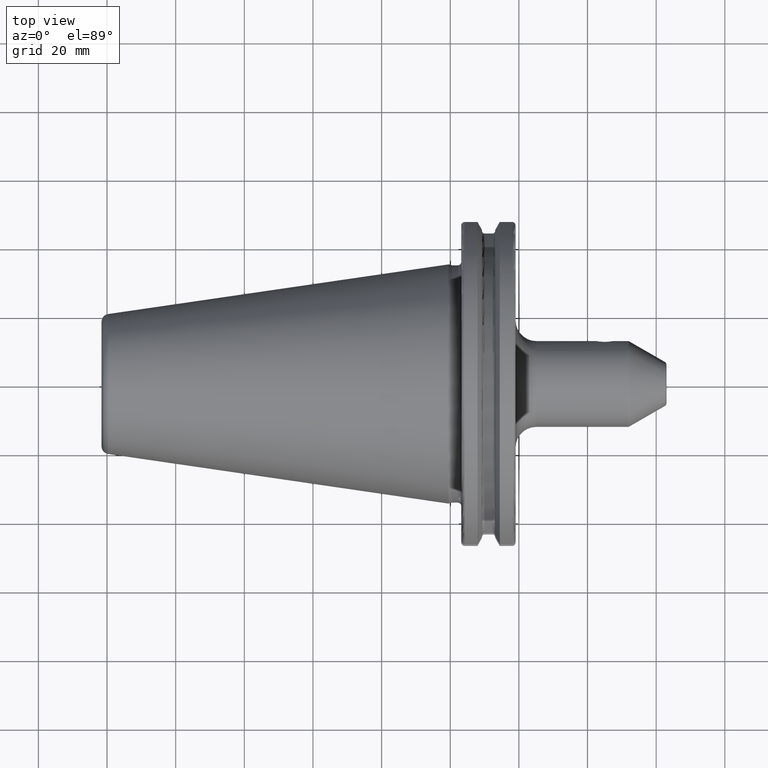
[diagram: clean part render]
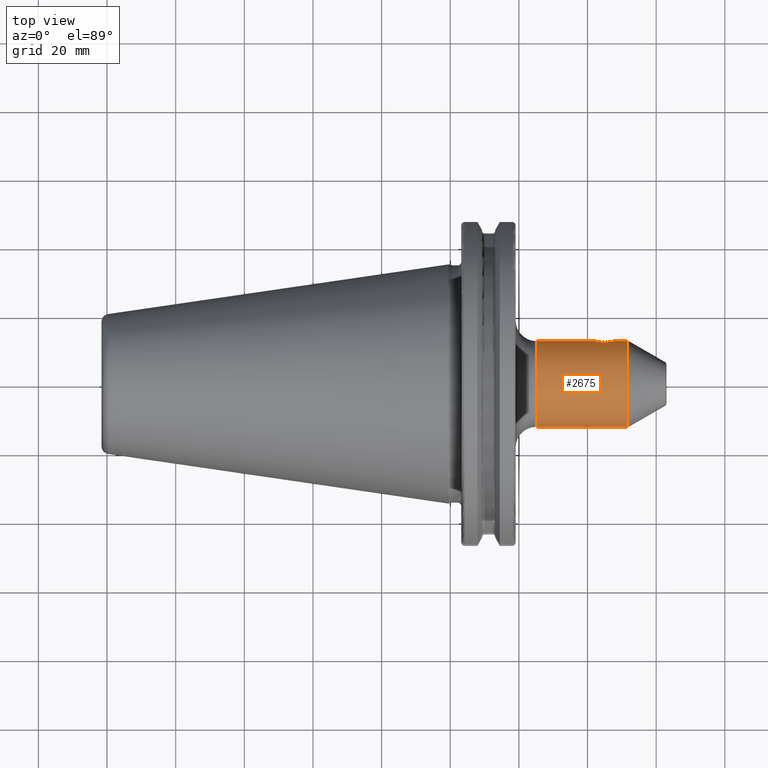
[diagram: same view with one face highlighted and labeled with its STEP entity id]
A machine part, top view. The second image highlights one B-rep face of the part: STEP entity #2675.
In plain terms, the highlighted cylindrical surface (partial cylindrical patch) has radius 12.5 mm, axis along (1, 0, 0).
Its self-contained STEP definition (entity closure, byte-faithful):
#962=CARTESIAN_POINT('',(4.75E1,1.25E1,0.E0));
#963=CARTESIAN_POINT('',(4.75E1,1.25E1,1.636152789298E-1));
#964=CARTESIAN_POINT('',(4.746859392631E1,1.249366097127E1,4.843569650245E-1));
#965=CARTESIAN_POINT('',(4.732787380435E1,1.246628661622E1,9.544741323415E-1));
#966=CARTESIAN_POINT('',(4.709969225365E1,1.242520376702E1,1.385599207801E0));
#967=CARTESIAN_POINT('',(4.679378691470E1,1.237658457224E1,1.763809352546E0));
#968=CARTESIAN_POINT('',(4.642032809810E1,1.232737403344E1,2.076453015106E0));
#969=CARTESIAN_POINT('',(4.599124481157E1,1.228471746962E1,2.312665018228E0));
#970=CARTESIAN_POINT('',(4.551696339140E1,1.225510170684E1,2.462854285463E0));
#971=CARTESIAN_POINT('',(4.502037170213E1,1.224406425036E1,2.516410475751E0));
#972=CARTESIAN_POINT('',(4.452433083425E1,1.225343614877E1,2.471001297037E0));
#973=CARTESIAN_POINT('',(4.404852229059E1,1.228150257519E1,2.329474891621E0));
#974=CARTESIAN_POINT('',(4.361024903247E1,1.232376918576E1,2.097639563023E0));
#975=CARTESIAN_POINT('',(4.322658072603E1,1.237355937909E1,1.785045290640E0));
#976=CARTESIAN_POINT('',(4.291161752976E1,1.242324313891E1,1.403458428770E0));
#977=CARTESIAN_POINT('',(4.267727245802E1,1.246530320876E1,9.680529374891E-1));
#978=CARTESIAN_POINT('',(4.253240123928E1,1.249345788711E1,4.917901451870E-1));
#979=CARTESIAN_POINT('',(4.25E1,1.25E1,1.662377153320E-1));
#980=CARTESIAN_POINT('',(4.25E1,1.25E1,0.E0));
#982=CARTESIAN_POINT('',(5.173205080757E1,0.E0,0.E0));
#983=DIRECTION('',(-1.E0,0.E0,0.E0));
#984=DIRECTION('',(0.E0,-1.E0,0.E0));
#985=AXIS2_PLACEMENT_3D('',#982,#983,#984);
#987=CARTESIAN_POINT('',(2.505E1,0.E0,0.E0));
#988=DIRECTION('',(1.E0,0.E0,0.E0));
#989=DIRECTION('',(0.E0,1.E0,0.E0));
#990=AXIS2_PLACEMENT_3D('',#987,#988,#989);
#1136=DIRECTION('',(-1.E0,0.E0,1.485816007001E-13));
#1137=VECTOR('',#1136,1.745E1);
#1138=CARTESIAN_POINT('',(4.25E1,1.25E1,0.E0));
#1139=LINE('',#1138,#1137);
#1145=DIRECTION('',(-1.E0,0.E0,-3.934573834513E-14));
#1146=VECTOR('',#1145,2.668205080757E1);
#1147=CARTESIAN_POINT('',(5.173205080757E1,-1.25E1,-1.545518808385E-12));
#1148=LINE('',#1147,#1146);
#1154=DIRECTION('',(-1.E0,0.E0,-3.649212640127E-13));
#1155=VECTOR('',#1154,4.232050807569E0);
#1156=CARTESIAN_POINT('',(5.173205080757E1,1.25E1,1.545134203760E-12));
#1157=LINE('',#1156,#1155);
#1604=CARTESIAN_POINT('',(4.75E1,1.25E1,0.E0));
#1606=VERTEX_POINT('',#1604);
#1608=CARTESIAN_POINT('',(4.25E1,1.25E1,0.E0));
#1610=VERTEX_POINT('',#1608);
#1617=CARTESIAN_POINT('',(2.505E1,-1.25E1,0.E0));
#1618=CARTESIAN_POINT('',(2.505E1,1.25E1,0.E0));
#1619=VERTEX_POINT('',#1617);
#1620=VERTEX_POINT('',#1618);
#1621=CARTESIAN_POINT('',(5.173205080757E1,1.25E1,0.E0));
#1622=CARTESIAN_POINT('',(5.173205080757E1,-1.25E1,0.E0));
#1623=VERTEX_POINT('',#1621);
#1624=VERTEX_POINT('',#1622);
#2657=CARTESIAN_POINT('',(1.68525E1,0.E0,0.E0));
#2658=DIRECTION('',(1.E0,0.E0,0.E0));
#2659=DIRECTION('',(0.E0,-1.E0,0.E0));
#2660=AXIS2_PLACEMENT_3D('',#2657,#2658,#2659);
#2661=CYLINDRICAL_SURFACE('',#2660,1.25E1);
#2663=ORIENTED_EDGE('',*,*,#2662,.F.);
#2665=ORIENTED_EDGE('',*,*,#2664,.F.);
#2667=ORIENTED_EDGE('',*,*,#2666,.F.);
#2669=ORIENTED_EDGE('',*,*,#2668,.T.);
#2670=ORIENTED_EDGE('',*,*,#2651,.F.);
#2672=ORIENTED_EDGE('',*,*,#2671,.F.);
#2673=EDGE_LOOP('',(#2663,#2665,#2667,#2669,#2670,#2672));
#2674=FACE_OUTER_BOUND('',#2673,.F.);
#2675=ADVANCED_FACE('',(#2674),#2661,.T.);
#981=B_SPLINE_CURVE_WITH_KNOTS('',3,(#962,#963,#964,#965,#966,#967,#968,#969,
#970,#971,#972,#973,#974,#975,#976,#977,#978,#979,#980),.UNSPECIFIED.,.F.,.F.,
(4,1,1,1,1,1,1,1,1,1,1,1,1,1,1,1,4),(0.E0,6.25E-2,1.25E-1,1.875E-1,2.5E-1,
3.125E-1,3.75E-1,4.375E-1,5.E-1,5.625E-1,6.25E-1,6.875E-1,7.5E-1,8.125E-1,
8.75E-1,9.375E-1,1.E0),.UNSPECIFIED.);
#986=CIRCLE('',#985,1.25E1);
#991=CIRCLE('',#990,1.25E1);
#2651=EDGE_CURVE('',#1620,#1619,#991,.T.);
#2662=EDGE_CURVE('',#1606,#1610,#981,.T.);
#2664=EDGE_CURVE('',#1623,#1606,#1157,.T.);
#2666=EDGE_CURVE('',#1624,#1623,#986,.T.);
#2668=EDGE_CURVE('',#1624,#1619,#1148,.T.);
#2671=EDGE_CURVE('',#1610,#1620,#1139,.T.);